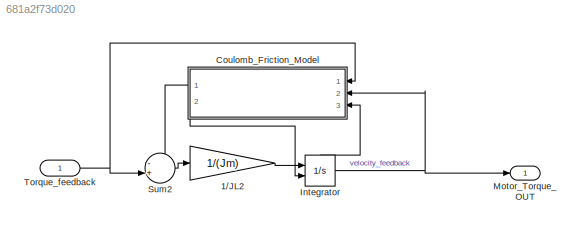
MODEL slx_681a2f73d020
KIND model
CONFIG AbsTol = auto
CONFIG EnableMultiTasking = off
CONFIG FixedStep = auto
CONFIG InitFcn = Jm=100;\nfric_gear=1;
CONFIG MaxStep = auto
CONFIG MinStep = auto
CONFIG RelTol = 1e-3
CONFIG SampleTimeConstraint = Unconstrained
CONFIG SolverName = VariableStepAuto
CONFIG StartTime = 0.0
CONFIG StopTime = 10.0
BLOCK [Gain] 1//JL2
  Gain = 1/(Jm)
  OutDataTypeStr = Inherit: Same as input
  ParamDataTypeStr = Inherit: Same as input
  SaturateOnIntegerOverflow = on
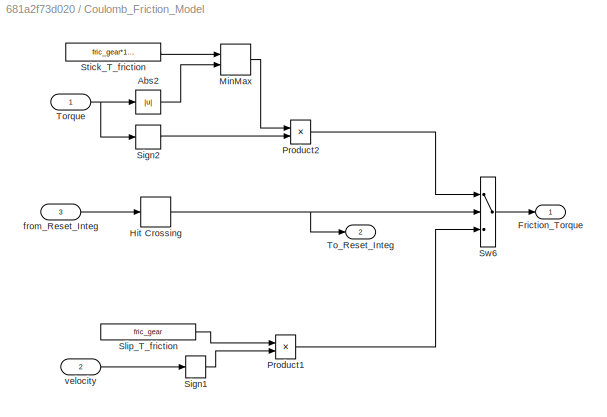
BLOCK [SubSystem] Coulomb_Friction_Model
  NameLocation = top
  Ports = [3, 2]
  RequestExecContextInheritance = off
BLOCK [Abs] Coulomb_Friction_Model/Abs2
  SaturateOnIntegerOverflow = off
BLOCK [Outport] Coulomb_Friction_Model/Friction_Torque
BLOCK [HitCross] Coulomb_Friction_Model/Hit Crossing
  Ports = [1, 1]
  ZeroCross = off
BLOCK [MinMax] Coulomb_Friction_Model/MinMax
  Inputs = 2
  Ports = [2, 1]
BLOCK [Product] Coulomb_Friction_Model/Product1
  Ports = [2, 1]
  RndMeth = Zero
BLOCK [Product] Coulomb_Friction_Model/Product2
  Ports = [2, 1]
  RndMeth = Zero
BLOCK [Signum] Coulomb_Friction_Model/Sign1
  ZeroCross = off
BLOCK [Signum] Coulomb_Friction_Model/Sign2
  ZeroCross = off
BLOCK [Constant] Coulomb_Friction_Model/Slip_T_friction
  Value = fric_gear
BLOCK [Constant] Coulomb_Friction_Model/Stick_T_friction
  Value = fric_gear*1.1
BLOCK [Switch] Coulomb_Friction_Model/Sw6
  Threshold = 0.5
BLOCK [Outport] Coulomb_Friction_Model/To_Reset_Integ
  Port = 2
BLOCK [Inport] Coulomb_Friction_Model/Torque
BLOCK [Inport] Coulomb_Friction_Model/from_Reset_Integ
  Port = 3
BLOCK [Inport] Coulomb_Friction_Model/velocity
  Port = 2
BLOCK [Integrator] Integrator
  ExternalReset = rising
  Ports = [2, 1, 0, 0, 1]
  ShowStatePort = on
BLOCK [Outport] Motor_Torque_OUT
  NameLocation = top
BLOCK [Sum] Sum2
  Inputs = -+|
  Ports = [2, 1]
  SaturateOnIntegerOverflow = on
BLOCK [Inport] Torque_feedback
LINE 1//JL2:1 -> Integrator:1
LINE Coulomb_Friction_Model/Abs2:1 -> Coulomb_Friction_Model/MinMax:2
NET Coulomb_Friction_Model/Hit Crossing:1 -> Coulomb_Friction_Model/Sw6:2, Coulomb_Friction_Model/To_Reset_Integ:1
LINE Coulomb_Friction_Model/MinMax:1 -> Coulomb_Friction_Model/Product2:1
LINE Coulomb_Friction_Model/Product1:1 -> Coulomb_Friction_Model/Sw6:3
LINE Coulomb_Friction_Model/Product2:1 -> Coulomb_Friction_Model/Sw6:1
LINE Coulomb_Friction_Model/Sign1:1 -> Coulomb_Friction_Model/Product1:2
LINE Coulomb_Friction_Model/Sign2:1 -> Coulomb_Friction_Model/Product2:2
LINE Coulomb_Friction_Model/Slip_T_friction:1 -> Coulomb_Friction_Model/Product1:1
LINE Coulomb_Friction_Model/Stick_T_friction:1 -> Coulomb_Friction_Model/MinMax:1
LINE Coulomb_Friction_Model/Sw6:1 -> Coulomb_Friction_Model/Friction_Torque:1
NET Coulomb_Friction_Model/Torque:1 -> Coulomb_Friction_Model/Abs2:1, Coulomb_Friction_Model/Sign2:1
LINE Coulomb_Friction_Model/from_Reset_Integ:1 -> Coulomb_Friction_Model/Hit Crossing:1
LINE Coulomb_Friction_Model/velocity:1 -> Coulomb_Friction_Model/Sign1:1
LINE Coulomb_Friction_Model:1 -> Sum2:1
LINE Coulomb_Friction_Model:2 -> Integrator:2
NET Integrator:1 -> Coulomb_Friction_Model:2, Motor_Torque_OUT:1
LINE Integrator:state -> Coulomb_Friction_Model:3
LINE Sum2:1 -> 1//JL2:1
NET Torque_feedback:1 -> Coulomb_Friction_Model:1, Sum2:2
note: NET lines group one-source signal fan-out (src -> all destinations, sorted); 1:1 wires keep LINE
